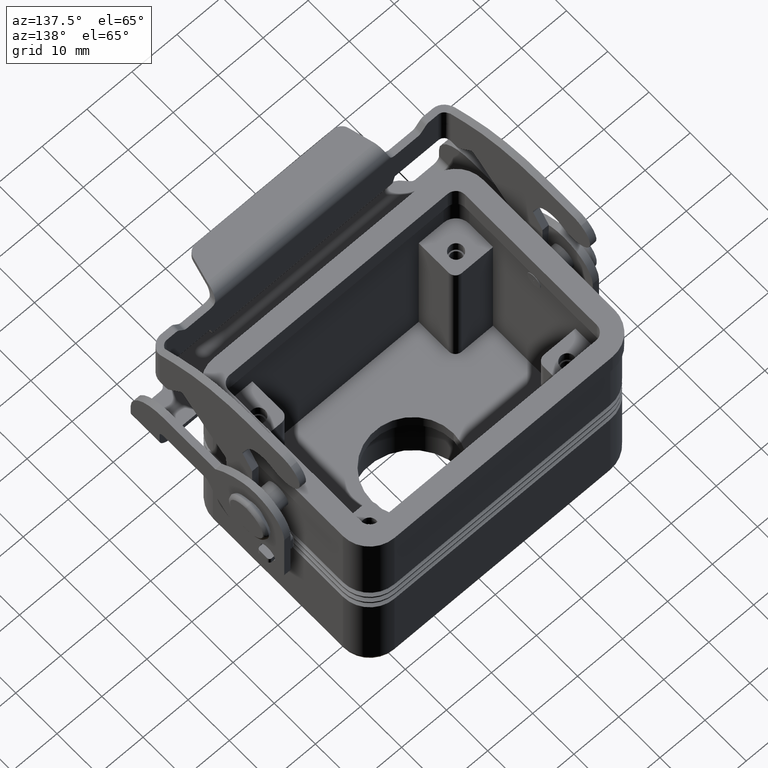
[diagram: clean part render]
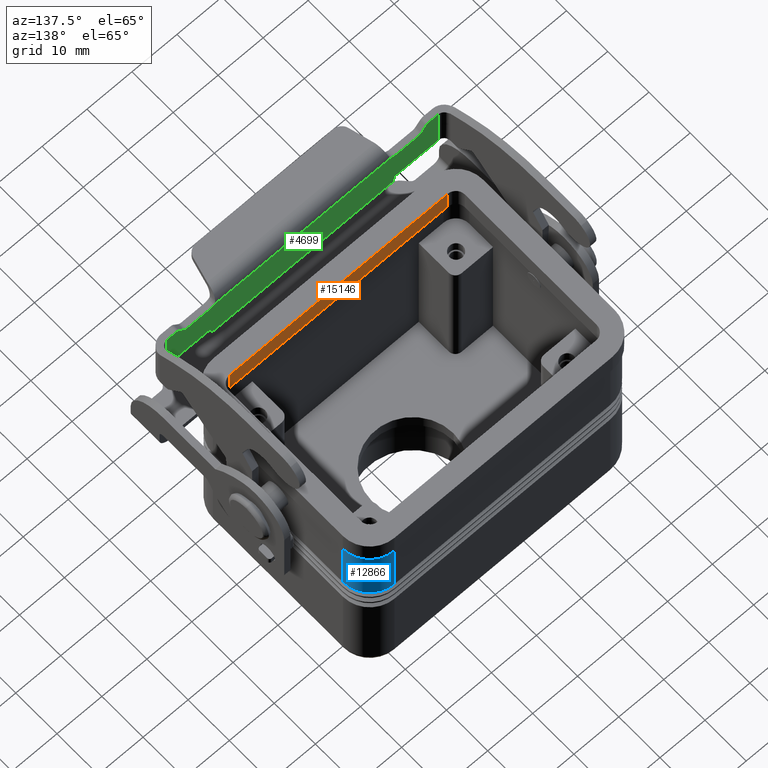
[diagram: same view with three faces highlighted in distinct colors, each labeled with its STEP entity id]
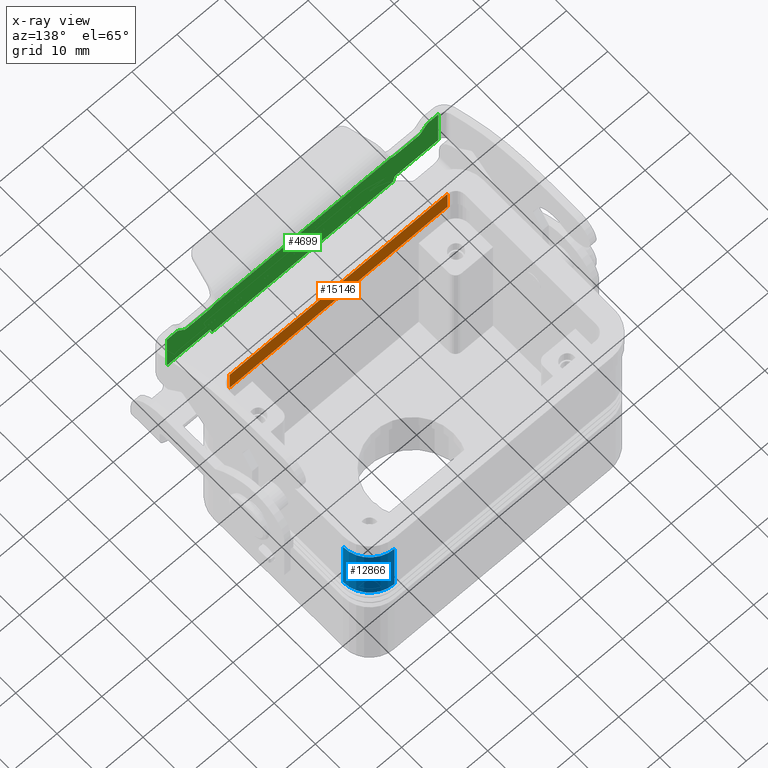
[diagram: x-ray of the same camera — body ghosted, the three highlighted faces saturated]
A machine part, auxiliary view with three faces highlighted in distinct colors.
The next image is the same camera in x-ray (body ghosted, the three faces saturated) — at least one of them is partly hidden behind the body in this view.
Their STEP definitions:

[orange] entity #15146 — the highlighted planar face has unit normal (0, -1, 0).
#15006=CARTESIAN_POINT('',(-24.250000000000000,-18.000000000000004,4.000000000000004));
#15007=VERTEX_POINT('',#15006);
#15015=CARTESIAN_POINT('',(24.250000000000000,-18.000000000000004,4.000000000000004));
#15016=VERTEX_POINT('',#15015);
#15017=CARTESIAN_POINT('',(-24.250000000000000,-18.000000000000004,4.000000000000004));
#15018=DIRECTION('',(1.0,0.0,0.0));
#15019=VECTOR('',#15018,48.500000000000000);
#15020=LINE('',#15017,#15019);
#15021=EDGE_CURVE('',#15007,#15016,#15020,.T.);
#15105=CARTESIAN_POINT('',(-24.250000000000000,-18.000000000000004,9.0));
#15106=VERTEX_POINT('',#15105);
#15114=CARTESIAN_POINT('',(-24.250000000000000,-18.000000000000004,9.0));
#15115=DIRECTION('',(0.0,0.0,-1.0));
#15116=VECTOR('',#15115,4.999999999999996);
#15117=LINE('',#15114,#15116);
#15118=EDGE_CURVE('',#15106,#15007,#15117,.T.);
#15123=CARTESIAN_POINT('',(-24.250000000000000,-18.000000000000004,9.0));
#15124=DIRECTION('',(0.0,-1.0,0.0));
#15125=DIRECTION('',(0.0,0.0,-1.0));
#15126=AXIS2_PLACEMENT_3D('',#15123,#15124,#15125);
#15127=PLANE('',#15126);
#15128=ORIENTED_EDGE('',*,*,#15021,.F.);
#15129=ORIENTED_EDGE('',*,*,#15118,.F.);
#15130=CARTESIAN_POINT('',(24.250000000000000,-18.000000000000004,9.0));
#15131=VERTEX_POINT('',#15130);
#15132=CARTESIAN_POINT('',(24.250000000000000,-18.000000000000004,9.0));
#15133=DIRECTION('',(-1.0,0.0,0.0));
#15134=VECTOR('',#15133,48.500000000000000);
#15135=LINE('',#15132,#15134);
#15136=EDGE_CURVE('',#15131,#15106,#15135,.T.);
#15137=ORIENTED_EDGE('',*,*,#15136,.F.);
#15138=CARTESIAN_POINT('',(24.250000000000000,-18.000000000000004,9.0));
#15139=DIRECTION('',(0.0,0.0,-1.0));
#15140=VECTOR('',#15139,4.999999999999996);
#15141=LINE('',#15138,#15140);
#15142=EDGE_CURVE('',#15131,#15016,#15141,.T.);
#15143=ORIENTED_EDGE('',*,*,#15142,.T.);
#15144=EDGE_LOOP('',(#15128,#15129,#15137,#15143));
#15145=FACE_OUTER_BOUND('',#15144,.T.);
#15146=ADVANCED_FACE('',(#15145),#15127,.F.);

[blue] entity #12866 — the highlighted cylindrical surface (partial cylindrical patch) has radius 6 mm, axis along (0, 0, -1).
#12290=CARTESIAN_POINT('',(30.0,15.750000000000004,-9.672649730810377));
#12291=VERTEX_POINT('',#12290);
#12298=CARTESIAN_POINT('',(30.0,15.750000000000004,4.000000000000002));
#12299=VERTEX_POINT('',#12298);
#12300=CARTESIAN_POINT('',(30.0,15.750000000000004,4.000000000000002));
#12301=DIRECTION('',(0.0,0.0,-1.0));
#12302=VECTOR('',#12301,13.672649730810379);
#12303=LINE('',#12300,#12302);
#12304=EDGE_CURVE('',#12299,#12291,#12303,.T.);
#12533=CARTESIAN_POINT('',(24.000000000000004,21.750000000000004,-9.672649730810377));
#12534=VERTEX_POINT('',#12533);
#12535=CARTESIAN_POINT('',(23.999999999999993,15.750000000000002,-9.672649730810376));
#12536=DIRECTION('',(0.0,0.0,1.0));
#12537=DIRECTION('',(1.0,0.0,0.0));
#12538=AXIS2_PLACEMENT_3D('',#12535,#12536,#12537);
#12539=CIRCLE('',#12538,6.000000000000001);
#12540=EDGE_CURVE('',#12291,#12534,#12539,.T.);
#12842=CARTESIAN_POINT('',(23.999999999999993,15.750000000000002,9.0));
#12843=DIRECTION('',(0.0,0.0,-1.0));
#12844=DIRECTION('',(1.0,0.0,0.0));
#12845=AXIS2_PLACEMENT_3D('',#12842,#12843,#12844);
#12846=CYLINDRICAL_SURFACE('',#12845,6.000000000000001);
#12847=ORIENTED_EDGE('',*,*,#12540,.T.);
#12848=CARTESIAN_POINT('',(23.999999999999993,21.750000000000007,4.000000000000002));
#12849=VERTEX_POINT('',#12848);
#12850=CARTESIAN_POINT('',(23.999999999999993,21.750000000000007,4.000000000000002));
#12851=DIRECTION('',(0.0,0.0,-1.0));
#12852=VECTOR('',#12851,13.672649730810379);
#12853=LINE('',#12850,#12852);
#12854=EDGE_CURVE('',#12849,#12534,#12853,.T.);
#12855=ORIENTED_EDGE('',*,*,#12854,.F.);
#12856=CARTESIAN_POINT('',(23.999999999999993,15.750000000000002,4.000000000000002));
#12857=DIRECTION('',(0.0,0.0,-1.0));
#12858=DIRECTION('',(1.0,0.0,0.0));
#12859=AXIS2_PLACEMENT_3D('',#12856,#12857,#12858);
#12860=CIRCLE('',#12859,6.000000000000001);
#12861=EDGE_CURVE('',#12849,#12299,#12860,.T.);
#12862=ORIENTED_EDGE('',*,*,#12861,.T.);
#12863=ORIENTED_EDGE('',*,*,#12304,.T.);
#12864=EDGE_LOOP('',(#12847,#12855,#12862,#12863));
#12865=FACE_OUTER_BOUND('',#12864,.T.);
#12866=ADVANCED_FACE('',(#12865),#12846,.T.);

[green] entity #4699 — the highlighted face is a freeform B-spline surface patch.
#1945=CARTESIAN_POINT('',(-20.123482775579031,-26.766637302590762,5.800808306497634));
#1946=VERTEX_POINT('',#1945);
#2852=CARTESIAN_POINT('',(-19.695901726643559,-26.766637302590773,15.777622637585793));
#2853=VERTEX_POINT('',#2852);
#2897=CARTESIAN_POINT('',(-20.733362697409255,-26.766637302590759,15.360985334995060));
#2898=VERTEX_POINT('',#2897);
#2899=CARTESIAN_POINT('',(-20.733362697409255,-26.766637302590759,16.860985334995064));
#2900=DIRECTION('',(-1.487417E-017,1.000000000000000,3.985521E-018));
#2901=DIRECTION('',(-0.965925826289069,-1.539887E-017,0.258819045102520));
#2902=AXIS2_PLACEMENT_3D('',#2899,#2900,#2901);
#2903=CIRCLE('',#2902,1.500000000000000);
#2904=EDGE_CURVE('',#2853,#2898,#2903,.T.);
#3277=CARTESIAN_POINT('',(-30.199999999999999,-26.766637302590745,7.360985334995053));
#3278=VERTEX_POINT('',#3277);
#3289=CARTESIAN_POINT('',(-30.199999999999999,-26.766637302590755,17.360985334995050));
#3290=VERTEX_POINT('',#3289);
#3298=CARTESIAN_POINT('',(-30.199999999999999,-26.766637302590745,7.360985334995053));
#3299=DIRECTION('',(0.0,0.0,1.0));
#3300=VECTOR('',#3299,9.999999999999996);
#3301=LINE('',#3298,#3300);
#3302=EDGE_CURVE('',#3278,#3290,#3301,.T.);
#3313=CARTESIAN_POINT('',(-28.233362697409259,-26.766637302590759,17.360985334995053));
#3314=VERTEX_POINT('',#3313);
#3321=CARTESIAN_POINT('',(-28.233362697409259,-26.766637302590759,17.360985334995053));
#3322=DIRECTION('',(-1.0,0.0,0.0));
#3323=VECTOR('',#3322,1.966637302590740);
#3324=LINE('',#3321,#3323);
#3325=EDGE_CURVE('',#3314,#3290,#3324,.T.);
#3338=CARTESIAN_POINT('',(-27.467318254290284,-26.766637302590759,17.003772944681593));
#3339=VERTEX_POINT('',#3338);
#3340=CARTESIAN_POINT('',(-28.233362697409259,-26.766637302590759,16.360985334995053));
#3341=DIRECTION('',(0.0,-1.0,0.0));
#3342=DIRECTION('',(0.0,0.0,1.0));
#3343=AXIS2_PLACEMENT_3D('',#3340,#3341,#3342);
#3344=CIRCLE('',#3343,1.0);
#3345=EDGE_CURVE('',#3339,#3314,#3344,.T.);
#3363=CARTESIAN_POINT('',(-26.388592561863682,-26.766637302590759,15.718197725308521));
#3364=VERTEX_POINT('',#3363);
#3365=CARTESIAN_POINT('',(-26.388592561863682,-26.766637302590759,15.718197725308521));
#3366=DIRECTION('',(-0.642787609686541,0.0,0.766044443118976));
#3367=VECTOR('',#3366,1.678199262354556);
#3368=LINE('',#3365,#3367);
#3369=EDGE_CURVE('',#3364,#3339,#3368,.T.);
#3387=CARTESIAN_POINT('',(-25.622548118744707,-26.766637302590759,15.360985334995053));
#3388=VERTEX_POINT('',#3387);
#3389=CARTESIAN_POINT('',(-25.622548118744707,-26.766637302590759,16.360985334995057));
#3390=DIRECTION('',(0.0,1.0,0.0));
#3391=DIRECTION('',(0.0,0.0,1.0));
#3392=AXIS2_PLACEMENT_3D('',#3389,#3390,#3391);
#3393=CIRCLE('',#3392,1.0);
#3394=EDGE_CURVE('',#3388,#3364,#3393,.T.);
#3412=CARTESIAN_POINT('',(-20.733362697409255,-26.766637302590759,15.360985334995060));
#3413=DIRECTION('',(-1.0,0.0,0.0));
#3414=VECTOR('',#3413,4.889185421335451);
#3415=LINE('',#3412,#3414);
#3416=EDGE_CURVE('',#2898,#3388,#3415,.T.);
#3432=CARTESIAN_POINT('',(-20.491881240836975,-26.766637302590752,7.175690096270691));
#3433=VERTEX_POINT('',#3432);
#3440=CARTESIAN_POINT('',(-20.491881240836975,-26.766637302590752,7.175690096270691));
#3441=DIRECTION('',(0.258819045102518,-7.487897E-015,-0.965925826289069));
#3442=VECTOR('',#3441,1.423382367831628);
#3443=LINE('',#3440,#3442);
#3444=EDGE_CURVE('',#3433,#1946,#3443,.T.);
#3454=CARTESIAN_POINT('',(-20.733362697409245,-26.766637302590752,7.360985334995061));
#3455=VERTEX_POINT('',#3454);
#3456=CARTESIAN_POINT('',(-20.733362697409245,-26.766637302590752,7.110985334995062));
#3457=DIRECTION('',(0.0,1.0,0.0));
#3458=DIRECTION('',(0.0,0.0,-1.0));
#3459=AXIS2_PLACEMENT_3D('',#3456,#3457,#3458);
#3460=CIRCLE('',#3459,0.250000000000000);
#3461=EDGE_CURVE('',#3455,#3433,#3460,.T.);
#3488=CARTESIAN_POINT('',(-30.199999999999999,-26.766637302590745,7.360985334995053));
#3489=DIRECTION('',(1.0,0.0,0.0));
#3490=VECTOR('',#3489,9.466637302590755);
#3491=LINE('',#3488,#3490);
#3492=EDGE_CURVE('',#3278,#3455,#3491,.T.);
#4506=CARTESIAN_POINT('',(20.123482775579021,-26.766637302590762,5.800808306497616));
#4507=VERTEX_POINT('',#4506);
#4556=CARTESIAN_POINT('',(20.123482775579021,-26.766637302590762,5.800808306497616));
#4557=DIRECTION('',(-1.0,0.0,0.0));
#4558=VECTOR('',#4557,40.246965551158056);
#4559=LINE('',#4556,#4558);
#4560=EDGE_CURVE('',#4507,#1946,#4559,.T.);
#4580=CARTESIAN_POINT('',(20.491881240836971,-26.766637302590755,7.175690096270685));
#4581=VERTEX_POINT('',#4580);
#4582=CARTESIAN_POINT('',(20.491881240836971,-26.766637302590755,7.175690096270685));
#4583=DIRECTION('',(-0.258819045102521,-4.991932E-015,-0.965925826289068));
#4584=VECTOR('',#4583,1.423382367831642);
#4585=LINE('',#4582,#4584);
#4586=EDGE_CURVE('',#4581,#4507,#4585,.T.);
#4598=CARTESIAN_POINT('',(30.199999999999992,-26.766637302590755,17.360985334995053));
#4599=CARTESIAN_POINT('',(30.199999999999989,-26.766637302590752,5.800808306497590));
#4600=CARTESIAN_POINT('',(-30.200000000000014,-26.766637302590770,17.360985334995082));
#4601=CARTESIAN_POINT('',(-30.200000000000017,-26.766637302590762,5.800808306497618));
#4602=B_SPLINE_SURFACE_WITH_KNOTS('',1,1,((#4598,#4600),(#4599,#4601)),.UNSPECIFIED.,.F.,.F.,.U.,(2,2),(2,2),(0.0,11.560177028497463),(0.0,60.400000000000006),.UNSPECIFIED.);
#4603=CARTESIAN_POINT('',(19.695901726643530,-26.766637302590766,15.777622637585802));
#4604=VERTEX_POINT('',#4603);
#4605=CARTESIAN_POINT('',(-19.695901726643559,-26.766637302590773,15.777622637585793));
#4606=DIRECTION('',(1.0,0.0,0.0));
#4607=VECTOR('',#4606,39.391803453287089);
#4608=LINE('',#4605,#4607);
#4609=EDGE_CURVE('',#2853,#4604,#4608,.T.);
#4610=ORIENTED_EDGE('',*,*,#4609,.T.);
#4611=CARTESIAN_POINT('',(20.733362697409245,-26.766637302590759,15.360985334995059));
#4612=VERTEX_POINT('',#4611);
#4613=CARTESIAN_POINT('',(20.733362697409245,-26.766637302590759,16.860985334995060));
#4614=DIRECTION('',(9.614813E-017,-1.000000000000000,2.576281E-017));
#4615=DIRECTION('',(0.965925826289069,9.953987E-017,0.258819045102520));
#4616=AXIS2_PLACEMENT_3D('',#4613,#4614,#4615);
#4617=CIRCLE('',#4616,1.500000000000000);
#4618=EDGE_CURVE('',#4604,#4612,#4617,.T.);
#4619=ORIENTED_EDGE('',*,*,#4618,.T.);
#4620=CARTESIAN_POINT('',(25.622548118744696,-26.766637302590759,15.360985334995053));
#4621=VERTEX_POINT('',#4620);
#4622=CARTESIAN_POINT('',(20.733362697409245,-26.766637302590759,15.360985334995059));
#4623=DIRECTION('',(1.0,0.0,0.0));
#4624=VECTOR('',#4623,4.889185421335451);
#4625=LINE('',#4622,#4624);
#4626=EDGE_CURVE('',#4612,#4621,#4625,.T.);
#4627=ORIENTED_EDGE('',*,*,#4626,.T.);
#4628=CARTESIAN_POINT('',(26.388592561863675,-26.766637302590759,15.718197725308517));
#4629=VERTEX_POINT('',#4628);
#4630=CARTESIAN_POINT('',(25.622548118744696,-26.766637302590759,16.360985334995057));
#4631=DIRECTION('',(0.0,-1.0,0.0));
#4632=DIRECTION('',(0.0,0.0,1.0));
#4633=AXIS2_PLACEMENT_3D('',#4630,#4631,#4632);
#4634=CIRCLE('',#4633,1.0);
#4635=EDGE_CURVE('',#4621,#4629,#4634,.T.);
#4636=ORIENTED_EDGE('',*,*,#4635,.T.);
#4637=CARTESIAN_POINT('',(27.467318254290273,-26.766637302590759,17.003772944681593));
#4638=VERTEX_POINT('',#4637);
#4639=CARTESIAN_POINT('',(26.388592561863675,-26.766637302590759,15.718197725308517));
#4640=DIRECTION('',(0.642787609686539,0.0,0.766044443118978));
#4641=VECTOR('',#4640,1.678199262354556);
#4642=LINE('',#4639,#4641);
#4643=EDGE_CURVE('',#4629,#4638,#4642,.T.);
#4644=ORIENTED_EDGE('',*,*,#4643,.T.);
#4645=CARTESIAN_POINT('',(28.233362697409248,-26.766637302590759,17.360985334995053));
#4646=VERTEX_POINT('',#4645);
#4647=CARTESIAN_POINT('',(28.233362697409248,-26.766637302590759,16.360985334995053));
#4648=DIRECTION('',(0.0,1.0,0.0));
#4649=DIRECTION('',(0.0,0.0,1.0));
#4650=AXIS2_PLACEMENT_3D('',#4647,#4648,#4649);
#4651=CIRCLE('',#4650,1.0);
#4652=EDGE_CURVE('',#4638,#4646,#4651,.T.);
#4653=ORIENTED_EDGE('',*,*,#4652,.T.);
#4654=CARTESIAN_POINT('',(30.199999999999992,-26.766637302590755,17.360985334995053));
#4655=VERTEX_POINT('',#4654);
#4656=CARTESIAN_POINT('',(28.233362697409248,-26.766637302590759,17.360985334995053));
#4657=DIRECTION('',(1.0,0.0,0.0));
#4658=VECTOR('',#4657,1.966637302590744);
#4659=LINE('',#4656,#4658);
#4660=EDGE_CURVE('',#4646,#4655,#4659,.T.);
#4661=ORIENTED_EDGE('',*,*,#4660,.T.);
#4662=CARTESIAN_POINT('',(30.199999999999992,-26.766637302590752,7.360985334995051));
#4663=VERTEX_POINT('',#4662);
#4664=CARTESIAN_POINT('',(30.199999999999992,-26.766637302590755,17.360985334995053));
#4665=DIRECTION('',(0.0,0.0,-1.0));
#4666=VECTOR('',#4665,10.000000000000004);
#4667=LINE('',#4664,#4666);
#4668=EDGE_CURVE('',#4655,#4663,#4667,.T.);
#4669=ORIENTED_EDGE('',*,*,#4668,.T.);
#4670=CARTESIAN_POINT('',(20.733362697409241,-26.766637302590755,7.360985334995055));
#4671=VERTEX_POINT('',#4670);
#4672=CARTESIAN_POINT('',(30.199999999999992,-26.766637302590752,7.360985334995051));
#4673=DIRECTION('',(-1.0,0.0,0.0));
#4674=VECTOR('',#4673,9.466637302590751);
#4675=LINE('',#4672,#4674);
#4676=EDGE_CURVE('',#4663,#4671,#4675,.T.);
#4677=ORIENTED_EDGE('',*,*,#4676,.T.);
#4678=CARTESIAN_POINT('',(20.733362697409241,-26.766637302590755,7.110985334995057));
#4679=DIRECTION('',(0.0,-1.0,0.0));
#4680=DIRECTION('',(0.0,0.0,-1.0));
#4681=AXIS2_PLACEMENT_3D('',#4678,#4679,#4680);
#4682=CIRCLE('',#4681,0.250000000000000);
#4683=EDGE_CURVE('',#4671,#4581,#4682,.T.);
#4684=ORIENTED_EDGE('',*,*,#4683,.T.);
#4685=ORIENTED_EDGE('',*,*,#4586,.T.);
#4686=ORIENTED_EDGE('',*,*,#4560,.T.);
#4687=ORIENTED_EDGE('',*,*,#3444,.F.);
#4688=ORIENTED_EDGE('',*,*,#3461,.F.);
#4689=ORIENTED_EDGE('',*,*,#3492,.F.);
#4690=ORIENTED_EDGE('',*,*,#3302,.T.);
#4691=ORIENTED_EDGE('',*,*,#3325,.F.);
#4692=ORIENTED_EDGE('',*,*,#3345,.F.);
#4693=ORIENTED_EDGE('',*,*,#3369,.F.);
#4694=ORIENTED_EDGE('',*,*,#3394,.F.);
#4695=ORIENTED_EDGE('',*,*,#3416,.F.);
#4696=ORIENTED_EDGE('',*,*,#2904,.F.);
#4697=EDGE_LOOP('',(#4610,#4619,#4627,#4636,#4644,#4653,#4661,#4669,#4677,#4684,#4685,#4686,#4687,#4688,#4689,#4690,#4691,#4692,#4693,#4694,#4695,#4696));
#4698=FACE_OUTER_BOUND('',#4697,.T.);
#4699=ADVANCED_FACE('',(#4698),#4602,.T.);